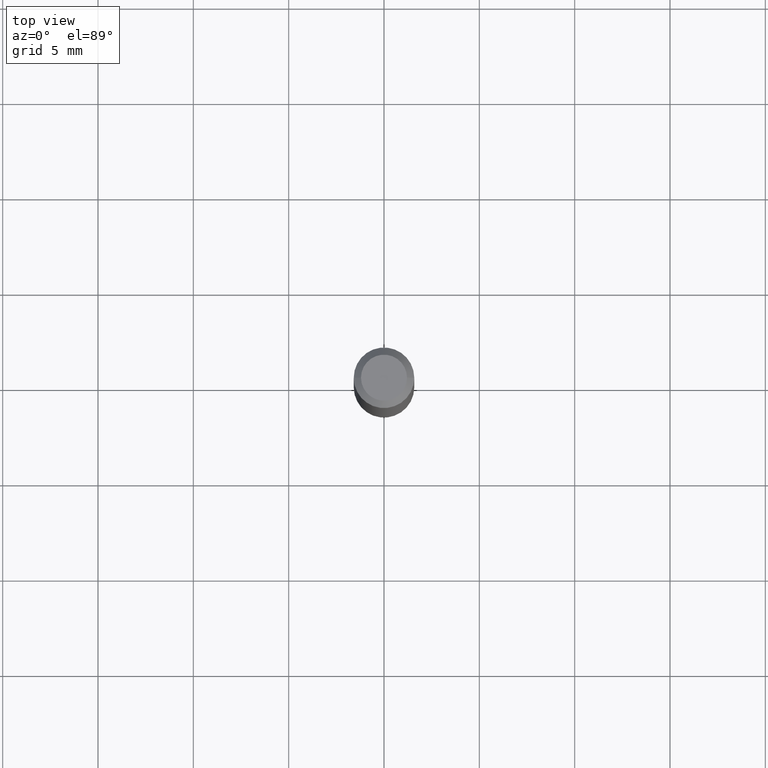
[diagram: clean part render]
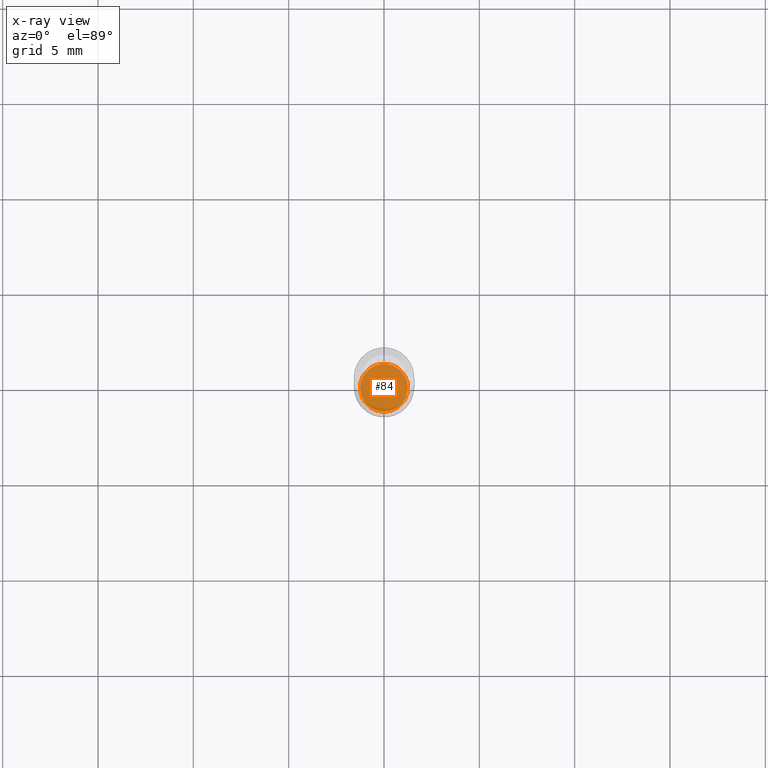
[diagram: x-ray — body ghosted, one internal face saturated and labeled with its STEP entity id]
A machine part, top view, then the same camera in x-ray: the body is ghosted and one INTERNAL B-rep face — a face not visible from any outside direction — is saturated and labeled: STEP entity #84.
In plain terms, the highlighted planar face has unit normal (-0, 0, 1).
Its self-contained STEP definition (entity closure, byte-faithful):
#13 = ORIENTED_EDGE ( 'NONE', *, *, #277, .F. ) ;
#18 = AXIS2_PLACEMENT_3D ( 'NONE', #201, #298, #299 ) ;
#31 = CARTESIAN_POINT ( 'NONE',  ( 0.04950000000000000233, -4.535434259157245343E-15, -1.200000000000000178 ) ) ;
#45 = DIRECTION ( 'NONE',  ( -2.438088387897960049E-29, 3.491481338843145188E-15, 1.000000000000000000 ) ) ;
#49 = VERTEX_POINT ( 'NONE', #31 ) ;
#55 = ORIENTED_EDGE ( 'NONE', *, *, #405, .F. ) ;
#84 = ADVANCED_FACE ( 'NONE', ( #138 ), #422, .F. ) ;
#107 = CARTESIAN_POINT ( 'NONE',  ( 2.934562567422164701E-29, -4.189777606611775804E-15, -1.200000000000000178 ) ) ;
#119 = CIRCLE ( 'NONE', #18, 0.04950000000000000233 ) ;
#128 = AXIS2_PLACEMENT_3D ( 'NONE', #107, #45, #291 ) ;
#136 = AXIS2_PLACEMENT_3D ( 'NONE', #455, #273, #417 ) ;
#138 = FACE_OUTER_BOUND ( 'NONE', #428, .T. ) ;
#201 = CARTESIAN_POINT ( 'NONE',  ( 2.934562567422164701E-29, -4.189777606611775804E-15, -1.200000000000000178 ) ) ;
#269 = CARTESIAN_POINT ( 'NONE',  ( -0.04950000000000000233, -3.835409725236414304E-15, -1.200000000000000178 ) ) ;
#273 = DIRECTION ( 'NONE',  ( -2.445468806185136597E-29, 3.491481338843145583E-15, 1.000000000000000000 ) ) ;
#277 = EDGE_CURVE ( 'NONE', #49, #367, #119, .T. ) ;
#291 = DIRECTION ( 'NONE',  ( 1.000000000000000000, -6.982962677686265922E-15, 4.876176775795935793E-29 ) ) ;
#298 = DIRECTION ( 'NONE',  ( -2.445468806185136597E-29, 3.491481338843145583E-15, 1.000000000000000000 ) ) ;
#299 = DIRECTION ( 'NONE',  ( 1.000000000000000000, -6.982962677686264344E-15, 0.000000000000000000 ) ) ;
#343 = CIRCLE ( 'NONE', #136, 0.04950000000000000233 ) ;
#367 = VERTEX_POINT ( 'NONE', #269 ) ;
#405 = EDGE_CURVE ( 'NONE', #367, #49, #343, .T. ) ;
#417 = DIRECTION ( 'NONE',  ( 1.000000000000000000, -6.982962677686264344E-15, 0.000000000000000000 ) ) ;
#422 = PLANE ( 'NONE',  #128 ) ;
#428 = EDGE_LOOP ( 'NONE', ( #13, #55 ) ) ;
#455 = CARTESIAN_POINT ( 'NONE',  ( 2.934562567422164701E-29, -4.189777606611775804E-15, -1.200000000000000178 ) ) ;